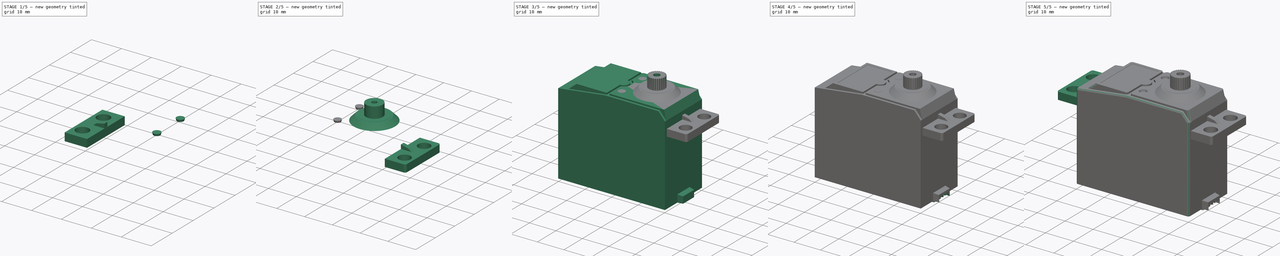
[diagram: build sequence overview — one tinted view per stage of 5, left to right]
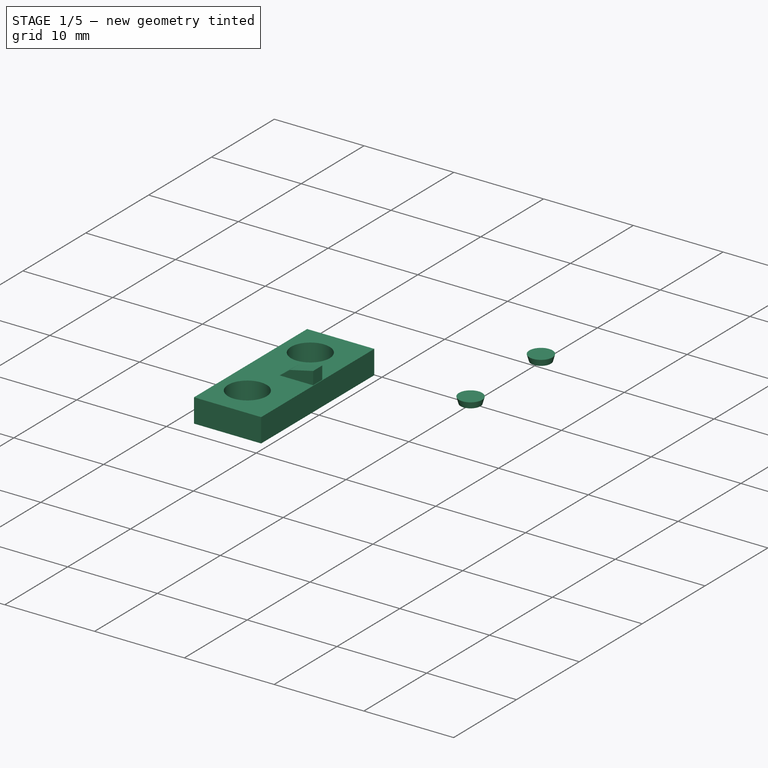
[diagram: stage 1 of 5 — iso view after this stage's code; geometry added in this stage tinted green]
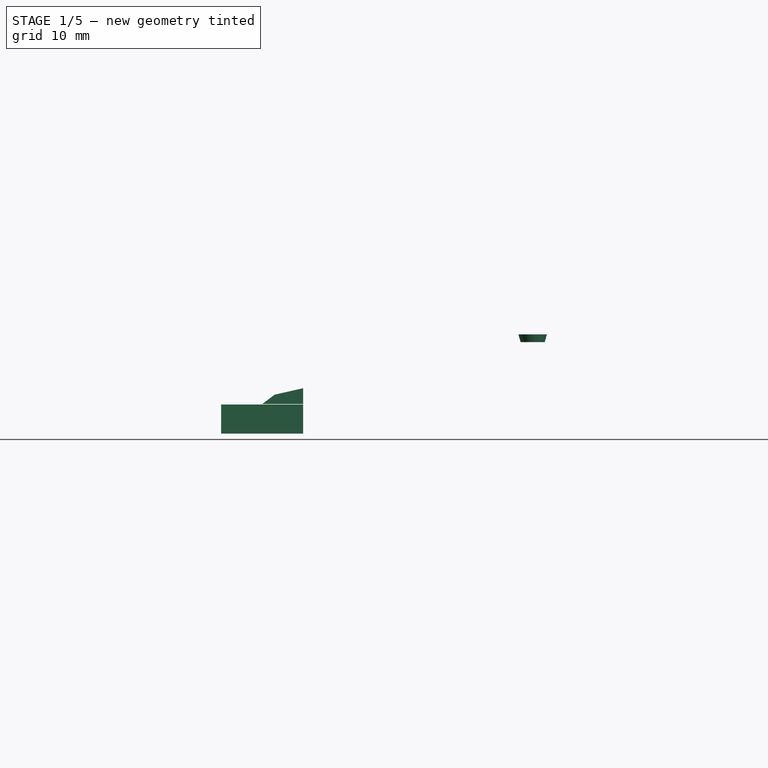
[diagram: stage 1 of 5 — front view after this stage's code; geometry added in this stage tinted green]
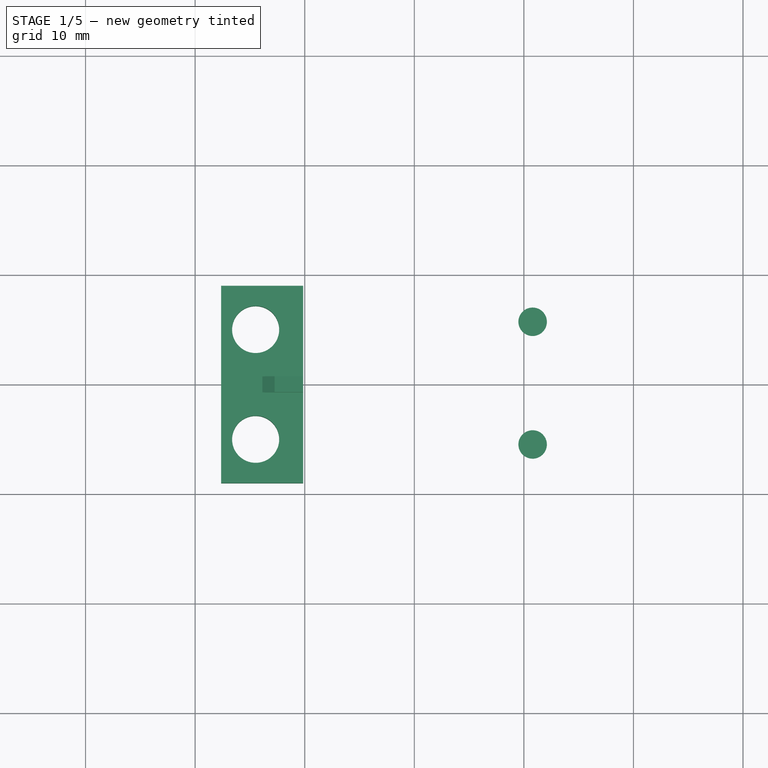
[diagram: stage 1 of 5 — top view after this stage's code; geometry added in this stage tinted green]
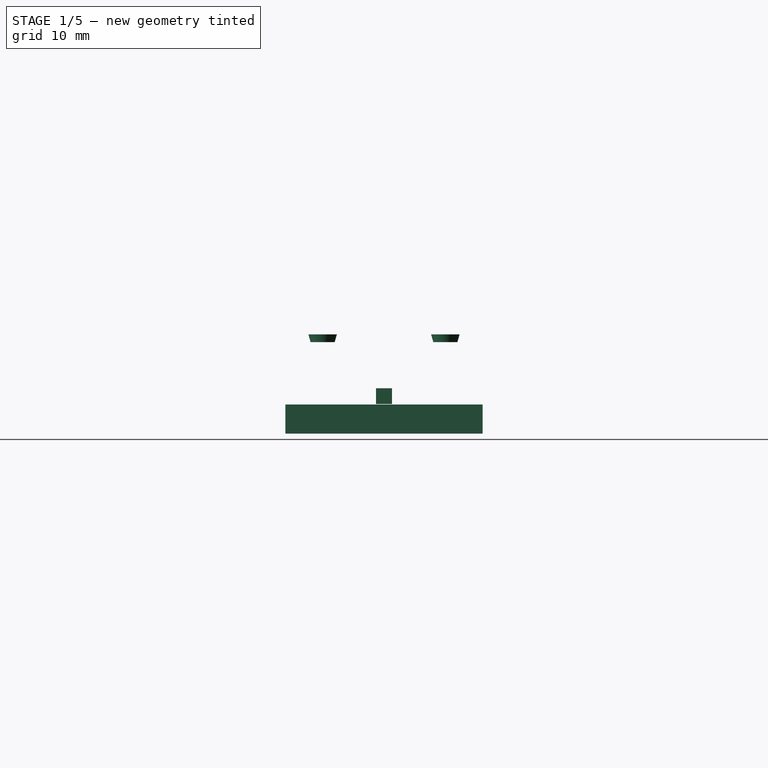
[diagram: stage 1 of 5 — right view after this stage's code; geometry added in this stage tinted green]
FCSTD DOCUMENT  (FreeCAD 0.14R3702 (Git))
Label: Futaba-3003-body
License: CC-BY 3.0
LicenseURL: http://creativecommons.org/licenses/by/3.0/
objects: Sketcher::SketchObject×24, PartDesign::Pocket×12, PartDesign::Pad×6, Part::Fillet×6, Part::MultiFuse×5, Part::Loft×3, Part::Mirroring×2, PartDesign::PolarPattern×1, Part::Cut×1, App::DocumentObjectGroup×1, Part::Feature×1
note: 79 computed .brp shape members not serialized (recipe doc carries the construction recipe); baked Part::Feature solids carry a one-line shape summary decoded from their .brp

FEATURE [Sketcher::SketchObject] Sketch019
  Placement = pos=(-20.15,0,24.7) rot=(0,0,1;0rad)
  sketch-geometry (4):
    g0: LineSegment StartX=-7.48 StartY=9 StartZ=0 EndX=0 EndY=9 EndZ=0
    g1: LineSegment StartX=0 StartY=9 StartZ=0 EndX=0 EndY=-9 EndZ=0
    g2: LineSegment StartX=0 StartY=-9 StartZ=0 EndX=-7.48 EndY=-9 EndZ=0
    g3: LineSegment StartX=-7.48 StartY=-9 StartZ=0 EndX=-7.48 EndY=9 EndZ=0
  constraints (12):
    c: Coincident(g0,g1)
    c: Coincident(g1,g2)
    c: Coincident(g2,g3)
    c: Coincident(g3,g0)
    c: Horizontal(g0)
    c: Horizontal(g2)
    c: Vertical(g1)
    c: Vertical(g3)
    c: Symmetric(g0,g2,g-1)
    c: PointOnObject(g1,g-2)
    c: DistanceX(g0) = 7.48
    c: DistanceY(g3) = 18
FEATURE [PartDesign::Pad] Pad004
  Length = 2.65
  Length2 = 100
  Placement = pos=(-20.15,0,24.7) rot=(0,0,1;0rad)
  Sketch = -> Sketch019
  Type = 0
FEATURE [Sketcher::SketchObject] Sketch020
  ExternalGeometry = -> [Pad004]
  Placement = pos=(-20.15,0,27.35) rot=(0,0,1;0rad)
  Support = -> Pad004 [Face6]
  sketch-geometry (6):
    g0: Circle CenterX=-4.33 CenterY=5.01 CenterZ=0 NormalX=0 NormalY=0 NormalZ=1 Radius=2.15
    g1: LineSegment [constr] StartX=-4.33 StartY=5.01 StartZ=0 EndX=-7.48 EndY=5.01 EndZ=0
    g2: GeomPoint [constr] X=-6.48 Y=5.01 Z=0
    g3: LineSegment [constr] StartX=-4.33 StartY=5.01 StartZ=0 EndX=-4.33 EndY=9 EndZ=0
    g4: GeomPoint [constr] X=-4.33 Y=7.16 Z=0
    g5: Circle CenterX=-4.33 CenterY=-5.01 CenterZ=0 NormalX=0 NormalY=0 NormalZ=1 Radius=2.15
  constraints (15):
    c: Radius(g0) = 2.15
    c: Coincident(g1,g0)
    c: Horizontal(g1)
    c: PointOnObject(g1,g-3)
    c: PointOnObject(g2,g1)
    c: PointOnObject(g2,g0)
    c: DistanceX(g2,g1) = -1
    c: Coincident(g3,g0)
    c: Vertical(g3)
    c: PointOnObject(g3,g-4)
    c: PointOnObject(g4,g3)
    c: PointOnObject(g4,g0)
    c: DistanceY(g4,g3) = 1.84
    c: Equal(g0,g5)
    c: Symmetric(g5,g0,g-1)
FEATURE [PartDesign::Pocket] Pocket011
  Length = 5
  Placement = pos=(-20.15,0,24.7) rot=(0,0,1;0rad)
  Sketch = -> Sketch020
  Type = 1
FEATURE [Sketcher::SketchObject] Sketch021
  Placement = pos=(-20.15,0,27.4) rot=(1,0,0;1.5708rad)
  sketch-geometry (4):
    g0: LineSegment StartX=-3.72 StartY=0 StartZ=0 EndX=-2.6 EndY=0.85 EndZ=0
    g1: LineSegment StartX=-2.6 StartY=0.85 StartZ=0 EndX=0 EndY=1.44 EndZ=0
    g2: LineSegment StartX=0 StartY=0 StartZ=0 EndX=-3.72 EndY=0 EndZ=0
    g3: LineSegment StartX=0 StartY=1.44 StartZ=0 EndX=0 EndY=0 EndZ=0
  constraints (11):
    c: Coincident(g0,g1)
    c: Coincident(g2,g0)
    c: Horizontal(g2)
    c: Coincident(g3,g1)
    c: Coincident(g3,g-1)
    c: Vertical(g3)
    c: DistanceY(g3) = -1.44
    c: DistanceX(g2) = -3.72
    c: Coincident(g2,g-1)
    c: DistanceY(g0,g0) = -0.85
    c: DistanceX(g0,g1) = 2.6
FEATURE [PartDesign::Pad] Pad005
  Length = 1.46
  Length2 = 100
  Midplane = true
  Placement = pos=(-20.15,0,27.4) rot=(1,0,0;1.5708rad)
  Sketch = -> Sketch021
  Type = 0
FEATURE [Part::MultiFuse] Fusion002
  Shapes = -> [Pad005,Pocket011]
FEATURE [Sketcher::SketchObject] Sketch022
  sketch-geometry (1):
    g0: Circle CenterX=0 CenterY=0 CenterZ=0 NormalX=0 NormalY=0 NormalZ=1 Radius=1.1
  constraints (2):
    c: Coincident(g0,g-1)
    c: Radius(g0) = 1.1
FEATURE [Sketcher::SketchObject] Sketch023
  Placement = pos=(0,0,0.7) rot=(0,0,1;0rad)
  sketch-geometry (1):
    g0: Circle CenterX=0 CenterY=0 CenterZ=0 NormalX=0 NormalY=0 NormalZ=1 Radius=1.3
  constraints (2):
    c: Coincident(g0,g-1)
    c: Radius(g0) = 1.3
FEATURE [Part::Loft] Loft002
  Closed = false
  Placement = pos=(0.8,5.6,33.05) rot=(0,0,1;0rad)
  Ruled = false
  Sections = -> [Sketch022,Sketch023]
  Solid = true
FEATURE [Part::Mirroring] Part__Mirroring001  label="Loft002 (Mirror #2)"
  Base = (0,0,0)
  Normal = (0,1,0)
  Source = -> Loft002
FEATURE [Part::MultiFuse] Fusion004
  Shapes = -> [Part__Mirroring001,Loft002]
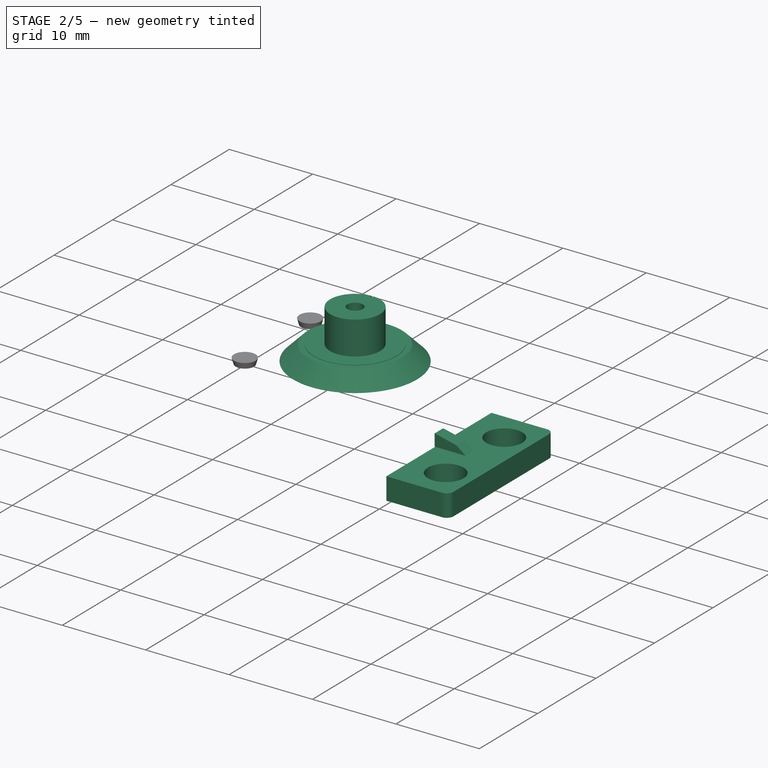
[diagram: stage 2 of 5 — iso view after this stage's code; geometry added in this stage tinted green]
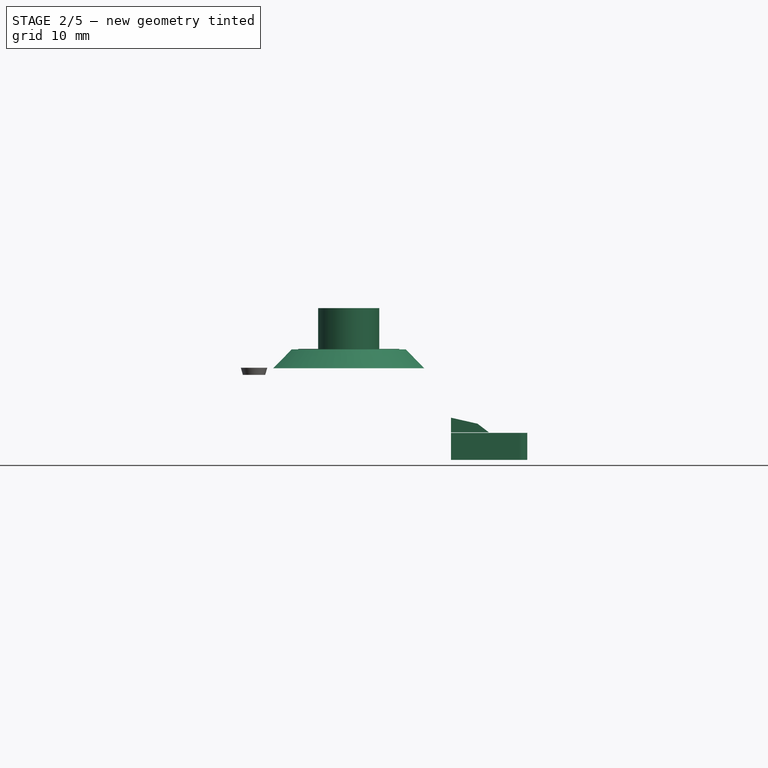
[diagram: stage 2 of 5 — front view after this stage's code; geometry added in this stage tinted green]
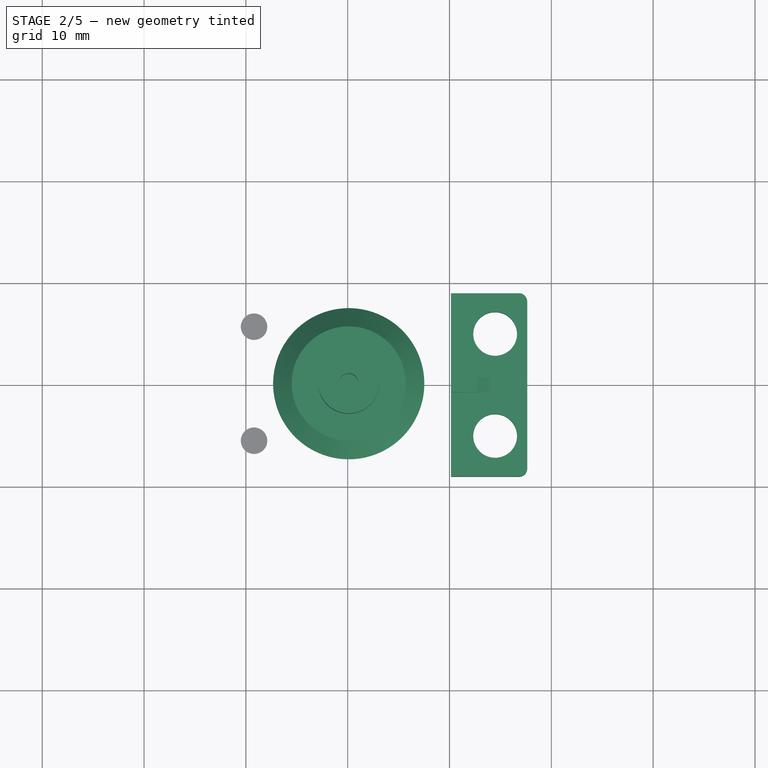
[diagram: stage 2 of 5 — top view after this stage's code; geometry added in this stage tinted green]
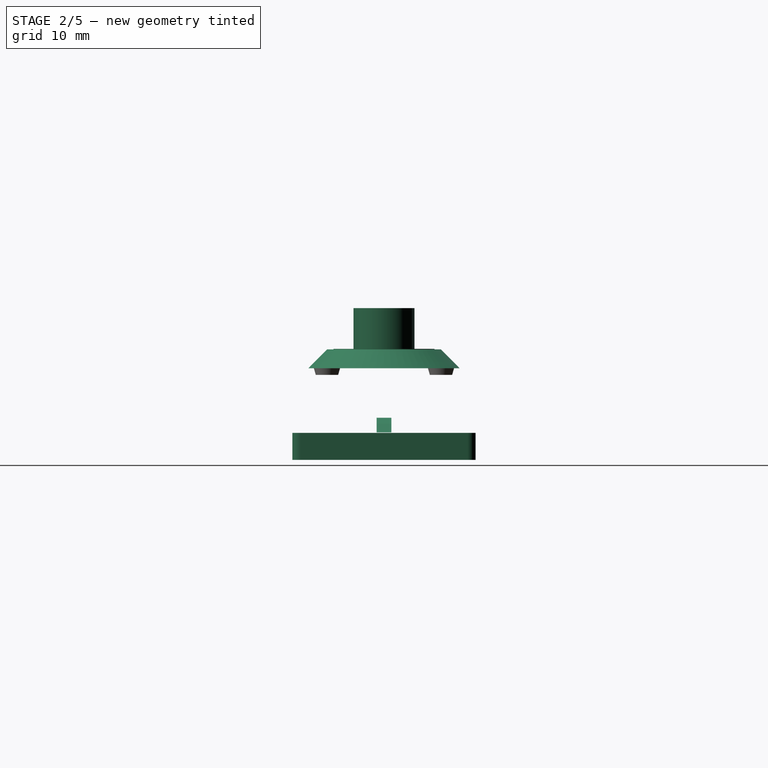
[diagram: stage 2 of 5 — right view after this stage's code; geometry added in this stage tinted green]
FEATURE [Sketcher::SketchObject] Sketch012
  sketch-geometry (1):
    g0: Circle CenterX=0 CenterY=0 CenterZ=0 NormalX=0 NormalY=0 NormalZ=1 Radius=7.425
  constraints (2):
    c: Coincident(g0,g-1)
    c: Radius(g0) = 7.425
FEATURE [Sketcher::SketchObject] Sketch013
  Placement = pos=(0,0,1.85) rot=(0,0,1;0rad)
  sketch-geometry (1):
    g0: Circle CenterX=0 CenterY=0 CenterZ=0 NormalX=0 NormalY=0 NormalZ=1 Radius=5.6
  constraints (2):
    c: Coincident(g0,g-1)
    c: Radius(g0) = 5.6
FEATURE [Part::Loft] Loft001
  Closed = false
  Placement = pos=(10.1,0,33.7) rot=(0,0,1;0rad)
  Ruled = false
  Sections = -> [Sketch012,Sketch013]
  Solid = true
FEATURE [Sketcher::SketchObject] Sketch014
  Placement = pos=(10.1,0,35.55) rot=(0,0,1;0rad)
  Support = -> Loft001 [Face3]
  sketch-geometry (1):
    g0: Circle CenterX=0 CenterY=0 CenterZ=0 NormalX=0 NormalY=0 NormalZ=1 Radius=4.96
  constraints (2):
    c: Coincident(g0,g-1)
    c: Radius(g0) = 4.96
FEATURE [PartDesign::Pad] Pad002
  Length = 0.05
  Length2 = 100
  Placement = pos=(10.1,0,33.7) rot=(0,0,1;0rad)
  Sketch = -> Sketch014
  Type = 0
FEATURE [Sketcher::SketchObject] Sketch015
  Placement = pos=(10.1,0,35.6) rot=(0,0,1;0rad)
  Support = -> Pad002 [Face5]
  sketch-geometry (1):
    g0: Circle CenterX=0 CenterY=0 CenterZ=0 NormalX=0 NormalY=0 NormalZ=1 Radius=3
  constraints (2):
    c: Coincident(g0,g-1)
    c: Radius(g0) = 3
FEATURE [PartDesign::Pad] Pad003
  Length = 4
  Length2 = 100
  Placement = pos=(10.1,0,33.7) rot=(0,0,1;0rad)
  Sketch = -> Sketch015
  Type = 0
FEATURE [Sketcher::SketchObject] Sketch016
  Placement = pos=(10.1,0,39.6) rot=(0,0,1;0rad)
  Support = -> Pad003 [Face7]
  sketch-geometry (1):
    g0: Circle CenterX=0 CenterY=0 CenterZ=0 NormalX=0 NormalY=0 NormalZ=1 Radius=0.935
  constraints (2):
    c: Coincident(g0,g-1)
    c: Radius(g0) = 0.935
FEATURE [PartDesign::Pocket] Pocket008
  Length = 4
  Placement = pos=(10.1,0,33.7) rot=(0,0,1;0rad)
  Sketch = -> Sketch016
  Type = 0
FEATURE [Sketcher::SketchObject] Sketch017
  Placement = pos=(10.1,0,39.6) rot=(0,0,1;0rad)
  Support = -> Pocket008 [Face7]
  sketch-geometry (6):
    g0: LineSegment StartX=-0.135 StartY=3.12447 StartZ=0 EndX=0.135 EndY=3.12447 EndZ=0
    g1: LineSegment [constr] StartX=0.116573 StartY=2.72447 StartZ=0 EndX=0 EndY=0 EndZ=0
    g2: LineSegment [constr] StartX=0 StartY=0 StartZ=0 EndX=-0.117614 EndY=2.72447 EndZ=0
    g3: LineSegment StartX=-0.117614 StartY=2.72447 StartZ=0 EndX=0.116573 EndY=2.72447 EndZ=0
    g4: LineSegment StartX=-0.117614 StartY=2.72447 StartZ=0 EndX=-0.135 EndY=3.12447 EndZ=0
    g5: LineSegment StartX=0.116573 StartY=2.72447 StartZ=0 EndX=0.135 EndY=3.12447 EndZ=0
  constraints (15):
    c: Horizontal(g0)
    c: DistanceX(g0) = 0.27
    c: Symmetric(g0,g0,g-2)
    c: Coincident(g2,g-1)
    c: Coincident(g1,g-1)
    c: Horizontal(g3)
    c: Coincident(g2,g3)
    c: Coincident(g1,g3)
    c: DistanceY(g0,g1) = -0.4
    c: Coincident(g4,g2)
    c: Coincident(g4,g0)
    c: Coincident(g5,g1)
    c: Coincident(g5,g0)
    c: DistanceX(g2) = -0.117614
    c: DistanceY(g2) = 2.72447
FEATURE [PartDesign::Pocket] Pocket009
  Length = 4
  Placement = pos=(10.1,0,33.7) rot=(0,0,1;0rad)
  Sketch = -> Sketch017
  Type = 0
FEATURE [Part::Fillet] Fillet  label="left-ear"
  Base = -> Fusion002
  Edges = 2 edges r=0.8: [Edge13,Edge17]
FEATURE [Part::Mirroring] Part__Mirroring  label="left-ear (Mirror #1)"
  Base = (0,0,0)
  Normal = (1,0,0)
  Source = -> Fillet
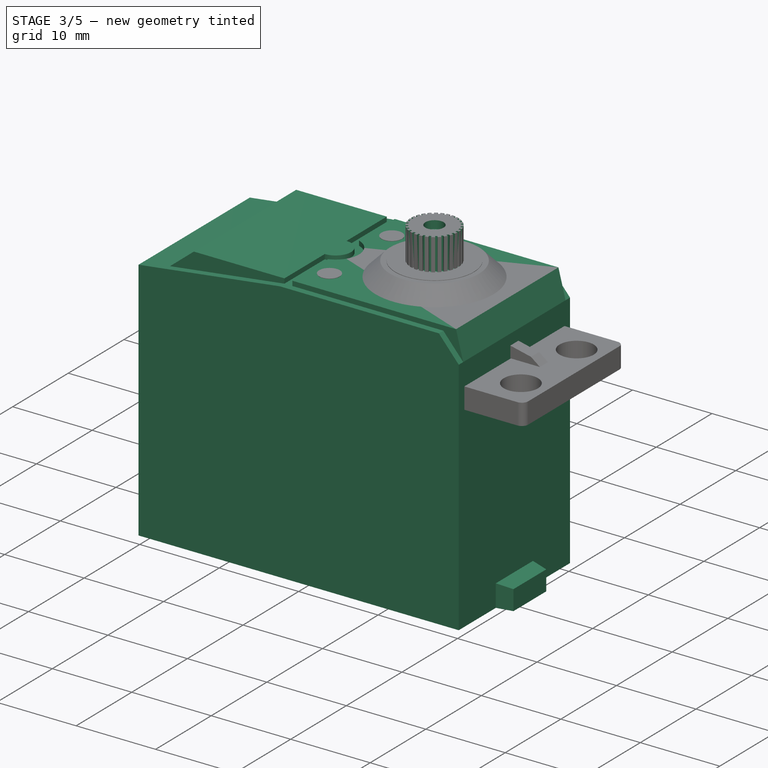
[diagram: stage 3 of 5 — iso view after this stage's code; geometry added in this stage tinted green]
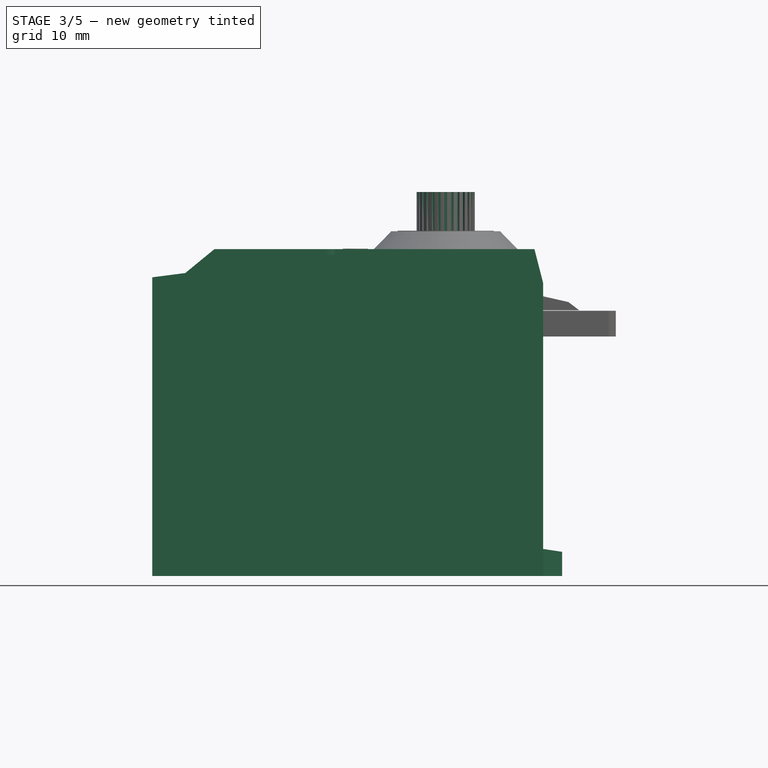
[diagram: stage 3 of 5 — front view after this stage's code; geometry added in this stage tinted green]
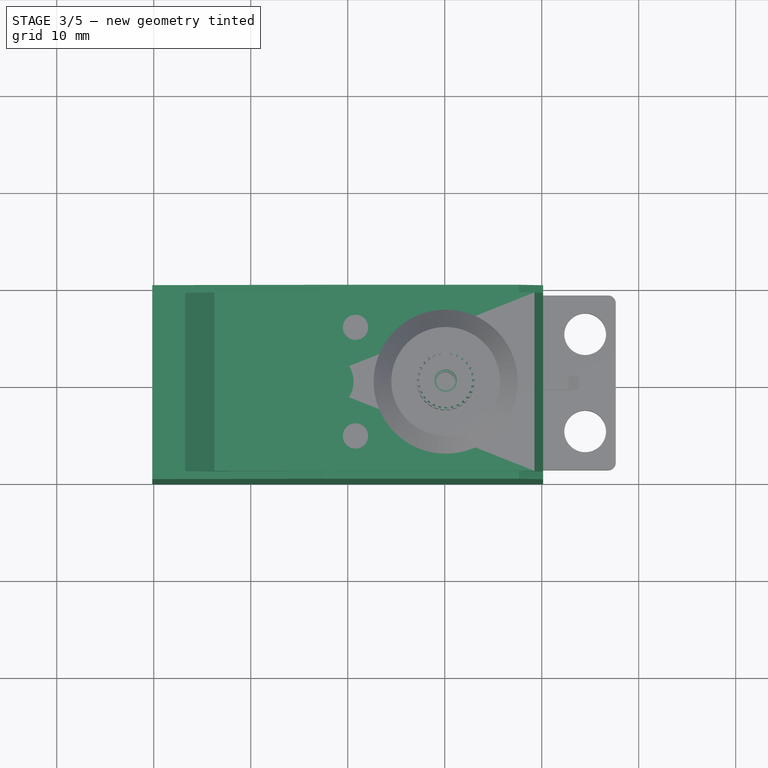
[diagram: stage 3 of 5 — top view after this stage's code; geometry added in this stage tinted green]
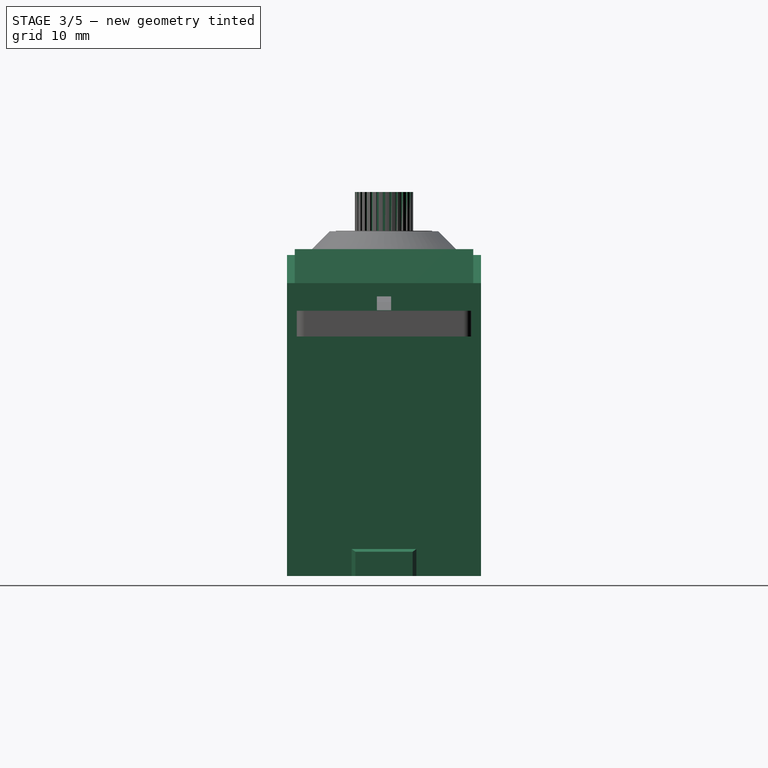
[diagram: stage 3 of 5 — right view after this stage's code; geometry added in this stage tinted green]
FEATURE [Sketcher::SketchObject] Sketch
  Placement = pos=(0,0,0) rot=(1,0,0;1.5708rad)
  sketch-geometry (4):
    g0: LineSegment StartX=-20.15 StartY=0 StartZ=0 EndX=20.15 EndY=0 EndZ=0
    g1: LineSegment StartX=20.15 StartY=0 StartZ=0 EndX=20.15 EndY=33.7 EndZ=0
    g2: LineSegment StartX=-20.15 StartY=33.7 StartZ=0 EndX=-20.15 EndY=0 EndZ=0
    g3: LineSegment StartX=20.15 StartY=33.7 StartZ=0 EndX=-20.15 EndY=33.7 EndZ=0
  constraints (12):
    c: PointOnObject(g0,g-1)
    c: PointOnObject(g0,g-1)
    c: Coincident(g0,g1)
    c: Vertical(g1)
    c: Coincident(g2,g0)
    c: DistanceX(g0) = 40.3
    c: DistanceY(g1,g0) = -33.7
    c: Vertical(g2)
    c: Symmetric(g0,g0,g-2)
    c: Coincident(g3,g1)
    c: Horizontal(g3)
    c: Coincident(g2,g3)
FEATURE [PartDesign::Pad] Pad
  Length = 20
  Length2 = 100
  Midplane = true
  Placement = pos=(0,0,0) rot=(1,0,0;1.5708rad)
  Sketch = -> Sketch
  Type = 0
FEATURE [Sketcher::SketchObject] Sketch001
  ExternalGeometry = -> [Pad]
  Placement = pos=(0,-10,0) rot=(1,0,0;1.5708rad)
  Support = -> Pad [Face6]
  sketch-geometry (6):
    g0: LineSegment StartX=20.15 StartY=30.2 StartZ=0 EndX=17.65 EndY=33.1 EndZ=0
    g1: LineSegment StartX=17.65 StartY=33.1 StartZ=0 EndX=-2.35 EndY=33.1 EndZ=0
    g2: LineSegment StartX=-2.35 StartY=33.1 StartZ=0 EndX=-20.15 EndY=30.8 EndZ=0
    g3: LineSegment StartX=-20.15 StartY=30.8 StartZ=0 EndX=-20.15 EndY=33.7 EndZ=0
    g4: LineSegment StartX=20.15 StartY=30.2 StartZ=0 EndX=20.15 EndY=33.7 EndZ=0
    g5: LineSegment StartX=-20.15 StartY=33.7 StartZ=0 EndX=20.15 EndY=33.7 EndZ=0
  constraints (17):
    c: PointOnObject(g0,g-3)
    c: Coincident(g0,g1)
    c: Horizontal(g1)
    c: Coincident(g1,g2)
    c: PointOnObject(g2,g-4)
    c: Coincident(g3,g2)
    c: Coincident(g4,g0)
    c: Coincident(g3,g-4)
    c: Coincident(g4,g-3)
    c: Horizontal(g5)
    c: Coincident(g5,g4)
    c: Coincident(g5,g3)
    c: DistanceX(g0,g4) = 2.5
    c: DistanceY(g0,g4) = 0.6
    c: DistanceX(g1) = -20
    c: DistanceY(g-3,g0) = 30.2
    c: DistanceY(g2,g-4) = -30.8
FEATURE [PartDesign::Pocket] Pocket
  Length = 0.8
  Placement = pos=(0,0,0) rot=(1,0,0;1.5708rad)
  Sketch = -> Sketch001
  Type = 0
FEATURE [Sketcher::SketchObject] Sketch002
  ExternalGeometry = -> [Pocket]
  Placement = pos=(0,10,0) rot=(-1,0,0;1.5708rad)
  Support = -> Pocket [Face4]
  sketch-geometry (6):
    g0: LineSegment StartX=-20.15 StartY=-30.8 StartZ=0 EndX=-2.35 EndY=-33.1 EndZ=0
    g1: LineSegment StartX=17.65 StartY=-33.1 StartZ=0 EndX=20.15 EndY=-30.2 EndZ=0
    g2: LineSegment StartX=20.15 StartY=-33.7 StartZ=0 EndX=-20.15 EndY=-33.7 EndZ=0
    g3: LineSegment StartX=-2.35 StartY=-33.1 StartZ=0 EndX=17.65 EndY=-33.1 EndZ=0
    g4: LineSegment StartX=20.15 StartY=-30.2 StartZ=0 EndX=20.15 EndY=-33.7 EndZ=0
    g5: LineSegment StartX=-20.15 StartY=-33.7 StartZ=0 EndX=-20.15 EndY=-30.8 EndZ=0
  constraints (12):
    c: Coincident(g-3,g0)
    c: Coincident(g1,g-4)
    c: Coincident(g2,g-5)
    c: Coincident(g2,g-5)
    c: Coincident(g0,g-3)
    c: Coincident(g1,g-4)
    c: Coincident(g3,g0)
    c: Coincident(g3,g1)
    c: Coincident(g4,g1)
    c: Coincident(g4,g2)
    c: Coincident(g5,g2)
    c: Coincident(g5,g0)
FEATURE [PartDesign::Pocket] Pocket001
  Length = 0.8
  Placement = pos=(0,0,0) rot=(1,0,0;1.5708rad)
  Sketch = -> Sketch002
  Type = 0
FEATURE [Sketcher::SketchObject] Sketch003
  ExternalGeometry = -> [Pocket001]
  Placement = pos=(0,-9.2,0) rot=(1,0,0;1.5708rad)
  Support = -> Pocket001 [Face7]
  sketch-geometry (7):
    g0: LineSegment StartX=20.15 StartY=30.2 StartZ=0 EndX=19.25 EndY=33.7 EndZ=0
    g1: LineSegment StartX=19.25 StartY=33.7 StartZ=0 EndX=20.15 EndY=33.7 EndZ=0
    g2: LineSegment StartX=20.15 StartY=33.7 StartZ=0 EndX=20.15 EndY=30.2 EndZ=0
    g3: LineSegment StartX=-20.15 StartY=30.8 StartZ=0 EndX=-16.75 EndY=31.2393 EndZ=0
    g4: LineSegment StartX=-16.75 StartY=31.2393 StartZ=0 EndX=-13.75 EndY=33.7 EndZ=0
    g5: LineSegment StartX=-13.75 StartY=33.7 StartZ=0 EndX=-20.15 EndY=33.7 EndZ=0
    g6: LineSegment StartX=-20.15 StartY=33.7 StartZ=0 EndX=-20.15 EndY=30.8 EndZ=0
  constraints (17):
    c: Coincident(g-3,g0)
    c: PointOnObject(g0,g-4)
    c: Coincident(g0,g1)
    c: Coincident(g1,g2)
    c: Coincident(g2,g0)
    c: Coincident(g1,g-4)
    c: DistanceX(g0,g1) = 0.9
    c: Coincident(g-6,g3)
    c: Coincident(g3,g4)
    c: PointOnObject(g4,g-4)
    c: Coincident(g4,g5)
    c: Coincident(g5,g6)
    c: Coincident(g6,g3)
    c: Coincident(g5,g-5)
    c: PointOnObject(g3,g-6)
    c: DistanceX(g0,g4) = -33
    c: DistanceX(g4,g3) = -3
FEATURE [PartDesign::Pocket] Pocket002
  Length = 5
  Placement = pos=(0,0,0) rot=(1,0,0;1.5708rad)
  Sketch = -> Sketch003
  Type = 1
FEATURE [Sketcher::SketchObject] Sketch004
  ExternalGeometry = -> [Pocket002]
  Placement = pos=(0,0,33.7) rot=(0,0,1;3.14159rad)
  Support = -> Pocket002 [Face14]
  sketch-geometry (11):
    g0: LineSegment StartX=2.35 StartY=-9.2 StartZ=0 EndX=2.35 EndY=-1.95 EndZ=0
    g1: ArcOfCircle CenterX=2.35 CenterY=0 CenterZ=0 NormalX=0 NormalY=0 NormalZ=1 Radius=1.95 StartAngle=1.5708 EndAngle=4.71239
    g2: LineSegment [constr] StartX=2.35 StartY=-1.95 StartZ=0 EndX=2.35 EndY=0 EndZ=0
    g3: LineSegment StartX=2.35 StartY=1.95 StartZ=0 EndX=2.35 EndY=9.2 EndZ=0
    g4: ArcOfCircle CenterX=2.35 CenterY=0 CenterZ=0 NormalX=0 NormalY=0 NormalZ=1 Radius=2.95 StartAngle=1.91663 EndAngle=4.36655
    g5: GeomPoint [constr] X=0.4 Y=0 Z=0
    g6: GeomPoint [constr] X=-0.6 Y=0 Z=0
    g7: LineSegment StartX=1.35 StartY=-2.77534 StartZ=0 EndX=1.35 EndY=-9.2 EndZ=0
    g8: LineSegment StartX=1.35 StartY=2.77534 StartZ=0 EndX=1.35 EndY=9.2 EndZ=0
    g9: LineSegment StartX=2.35 StartY=-9.2 StartZ=0 EndX=1.35 EndY=-9.2 EndZ=0
    g10: LineSegment StartX=2.35 StartY=9.2 StartZ=0 EndX=1.35 EndY=9.2 EndZ=0
  constraints (31):
    c: Vertical(g0)
    c: Coincident(g1,g0)
    c: Coincident(g2,g0)
    c: Coincident(g2,g1)
    c: Vertical(g2)
    c: Radius(g1) = 1.95
    c: Coincident(g3,g1)
    c: Vertical(g3)
    c: PointOnObject(g3,g-4)
    c: Symmetric(g0,g1,g-1)
    c: Coincident(g-5,g0)
    c: Coincident(g4,g1)
    c: Symmetric(g4,g4,g-1)
    c: DistanceX(g4,g0) = 1
    c: PointOnObject(g5,g-1)
    c: PointOnObject(g5,g1)
    c: PointOnObject(g6,g-1)
    c: PointOnObject(g6,g4)
    c: DistanceX(g5,g6) = -1
    c: PointOnObject(g7,g-3)
    c: Vertical(g7)
    c: Coincident(g7,g4)
    c: Coincident(g8,g4)
    c: PointOnObject(g8,g-4)
    c: Vertical(g8)
    c: Horizontal(g9)
    c: Coincident(g9,g0)
    c: Coincident(g9,g7)
    c: Horizontal(g10)
    c: Coincident(g10,g3)
    c: Coincident(g10,g8)
FEATURE [PartDesign::Pocket] Pocket003
  Length = 0.6
  Placement = pos=(0,0,0) rot=(1,0,0;1.5708rad)
  Sketch = -> Sketch004
  Type = 0
FEATURE [Sketcher::SketchObject] Sketch006
  Placement = pos=(0,0,0) rot=(0.57735,0.57735,0.57735;2.0944rad)
  sketch-geometry (4):
    g0: LineSegment StartX=-3.35 StartY=2.8 StartZ=0 EndX=3.35 EndY=2.8 EndZ=0
    g1: LineSegment StartX=3.35 StartY=2.8 StartZ=0 EndX=3.35 EndY=0 EndZ=0
    g2: LineSegment StartX=3.35 StartY=0 StartZ=0 EndX=-3.35 EndY=0 EndZ=0
    g3: LineSegment StartX=-3.35 StartY=0 StartZ=0 EndX=-3.35 EndY=2.8 EndZ=0
  constraints (12):
    c: Coincident(g0,g1)
    c: Coincident(g1,g2)
    c: Coincident(g2,g3)
    c: Coincident(g3,g0)
    c: Horizontal(g0)
    c: Horizontal(g2)
    c: Vertical(g1)
    c: Vertical(g3)
    c: PointOnObject(g2,g-1)
    c: Symmetric(g2,g1,g-2)
    c: DistanceX(g0) = 6.7
    c: DistanceY(g1) = -2.8
FEATURE [Sketcher::SketchObject] Sketch007
  Placement = pos=(2,0,0) rot=(0.57735,0.57735,0.57735;2.0944rad)
  sketch-geometry (4):
    g0: LineSegment StartX=-2.95 StartY=2.5 StartZ=0 EndX=2.95 EndY=2.5 EndZ=0
    g1: LineSegment StartX=2.95 StartY=2.5 StartZ=0 EndX=2.95 EndY=0 EndZ=0
    g2: LineSegment StartX=2.95 StartY=0 StartZ=0 EndX=-2.95 EndY=0 EndZ=0
    g3: LineSegment StartX=-2.95 StartY=0 StartZ=0 EndX=-2.95 EndY=2.5 EndZ=0
  constraints (12):
    c: Coincident(g0,g1)
    c: Coincident(g1,g2)
    c: Coincident(g2,g3)
    c: Coincident(g3,g0)
    c: Horizontal(g0)
    c: Horizontal(g2)
    c: Vertical(g1)
    c: Vertical(g3)
    c: PointOnObject(g2,g-1)
    c: Symmetric(g2,g1,g-2)
    c: DistanceX(g0) = 5.9
    c: DistanceY(g1) = -2.5
FEATURE [Part::Loft] Loft  label="wire-holder"
  Closed = false
  Placement = pos=(20.1,0,0) rot=(0,0,1;0rad)
  Ruled = false
  Sections = -> [Sketch006,Sketch007]
  Solid = true
FEATURE [PartDesign::PolarPattern] PolarPattern
  Angle = 360
  Axis = -> Sketch017 [N_Axis]
  Occurrences = 28
  Originals = -> [Pocket009]
  Placement = pos=(10.1,0,33.7) rot=(0,0,1;0rad)
FEATURE [Sketcher::SketchObject] Sketch018
  Placement = pos=(10.1,0,39.6) rot=(0,0,1;0rad)
  Support = -> PolarPattern [Face7]
  sketch-geometry (1):
    g0: Circle CenterX=0 CenterY=0 CenterZ=0 NormalX=0 NormalY=0 NormalZ=1 Radius=1.15
  constraints (2):
    c: Coincident(g0,g-1)
    c: Radius(g0) = 1.15
FEATURE [PartDesign::Pocket] Pocket010  label="shaft-base"
  Length = 1
  Placement = pos=(10.1,0,33.7) rot=(0,0,1;0rad)
  Sketch = -> Sketch018
  Type = 0
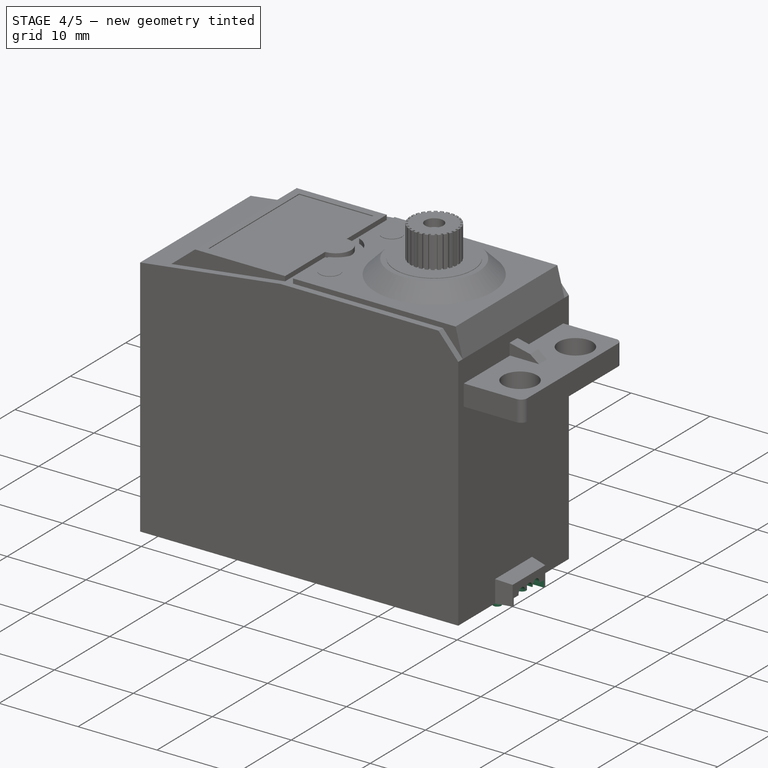
[diagram: stage 4 of 5 — iso view after this stage's code; geometry added in this stage tinted green]
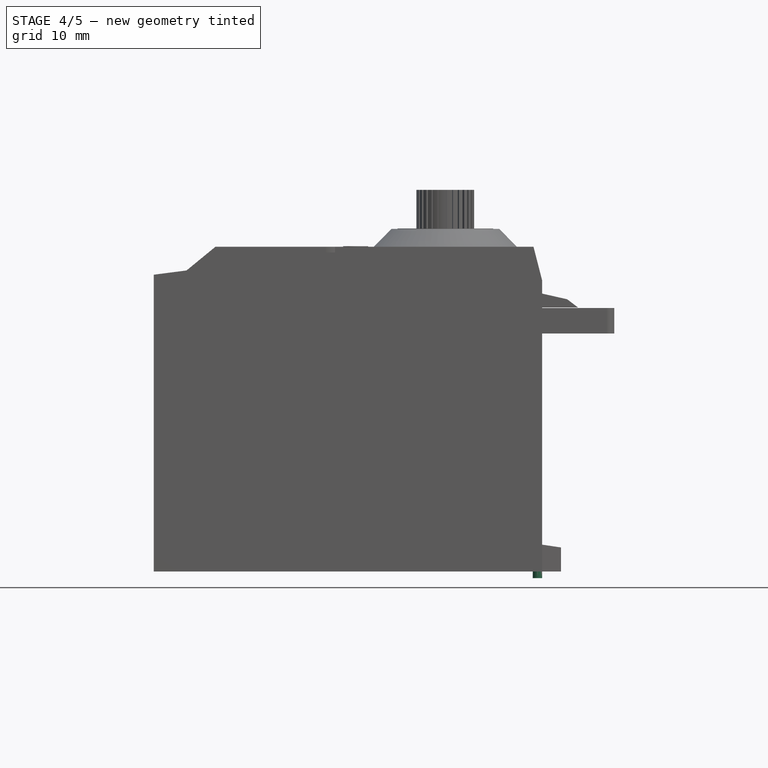
[diagram: stage 4 of 5 — front view after this stage's code; geometry added in this stage tinted green]
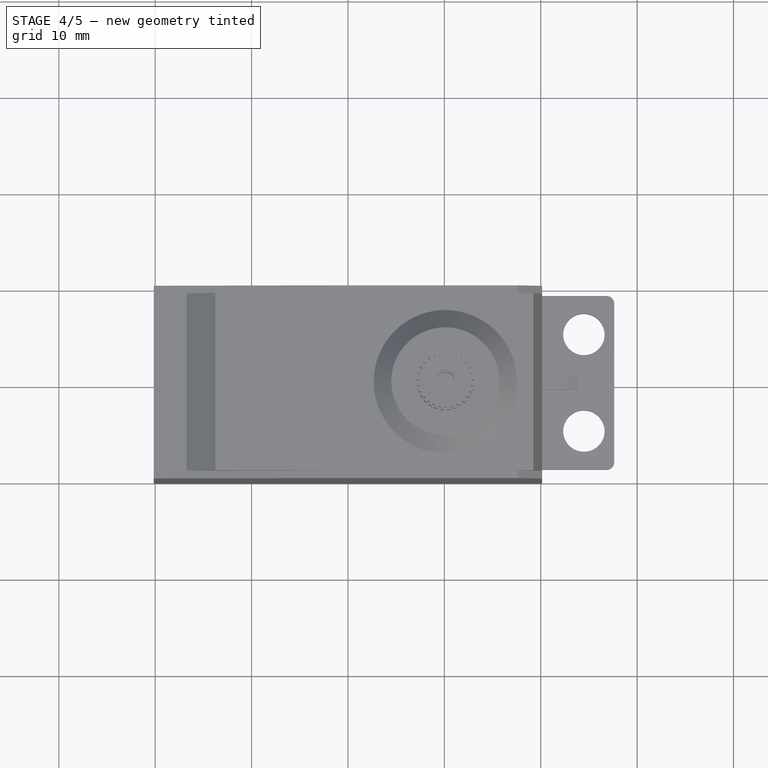
[diagram: stage 4 of 5 — top view after this stage's code; geometry added in this stage tinted green]
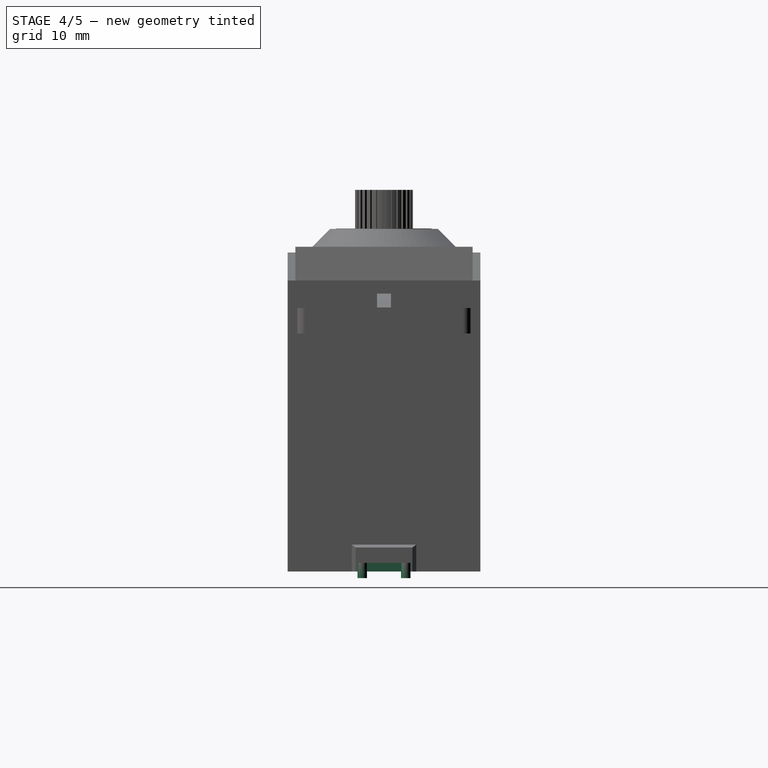
[diagram: stage 4 of 5 — right view after this stage's code; geometry added in this stage tinted green]
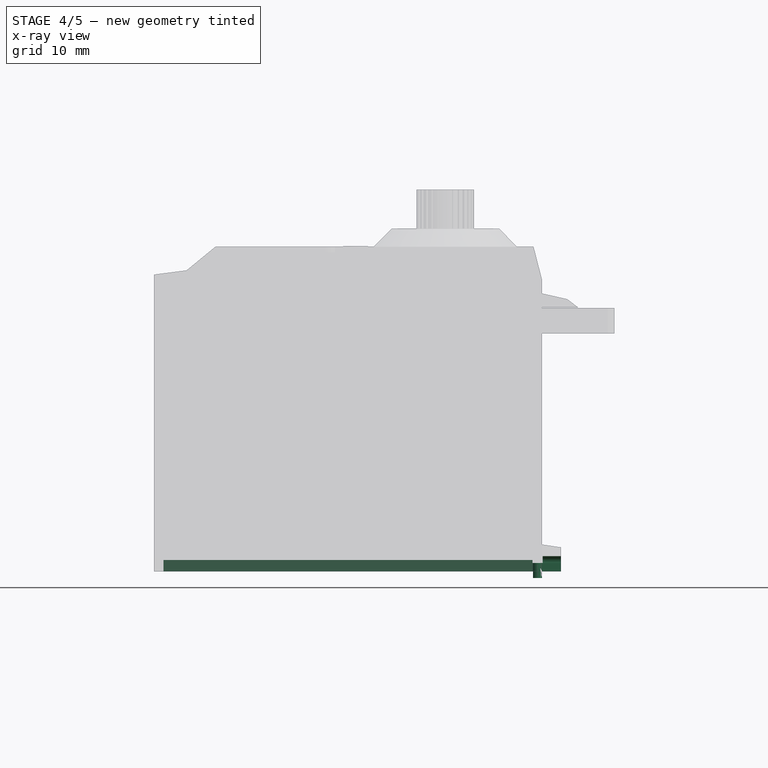
[diagram: stage 4 of 5 — x-ray composite at the front view; earlier geometry ghosted, this stage's added geometry solid]
FEATURE [Sketcher::SketchObject] Sketch005
  ExternalGeometry = -> [Pocket003]
  Placement = pos=(0,0,33.7) rot=(0,0,1;3.14159rad)
  Support = -> Pocket003 [Face16]
  sketch-geometry (6):
    g0: LineSegment StartX=12.75 StartY=-8.2 StartZ=0 EndX=3.35 EndY=-8.2 EndZ=0
    g1: LineSegment StartX=3.35 StartY=-8.2 StartZ=0 EndX=3.35 EndY=8.2 EndZ=0
    g2: LineSegment StartX=3.35 StartY=8.2 StartZ=0 EndX=12.75 EndY=8.2 EndZ=0
    g3: LineSegment StartX=12.75 StartY=8.2 StartZ=0 EndX=12.75 EndY=-8.2 EndZ=0
    g4: LineSegment [constr] StartX=13.75 StartY=-9.2 StartZ=0 EndX=12.75 EndY=-8.2 EndZ=0
    g5: LineSegment [constr] StartX=2.35 StartY=9.2 StartZ=0 EndX=3.35 EndY=8.2 EndZ=0
  constraints (16):
    c: Coincident(g0,g1)
    c: Coincident(g1,g2)
    c: Coincident(g2,g3)
    c: Coincident(g3,g0)
    c: Horizontal(g0)
    c: Horizontal(g2)
    c: Vertical(g1)
    c: Vertical(g3)
    c: Symmetric(g0,g2,g-1)
    c: Coincident(g4,g-3)
    c: Coincident(g4,g0)
    c: Angle(g4,g-3) = 0.785398
    c: Coincident(g5,g-4)
    c: Coincident(g5,g1)
    c: Angle(g5,g-4) = 0.785398
    c: DistanceX(g4,g0) = -1
FEATURE [PartDesign::Pocket] Pocket004
  Length = 0.1
  Placement = pos=(0,0,0) rot=(1,0,0;1.5708rad)
  Sketch = -> Sketch005
  Type = 0
FEATURE [Part::MultiFuse] Fusion
  Shapes = -> [Pocket004,Loft]
FEATURE [Sketcher::SketchObject] Sketch009
  ExternalGeometry = -> [Fusion]
  Placement = pos=(0,0,0) rot=(1,0,0;3.14159rad)
  Support = -> Fusion [Face2]
  sketch-geometry (5):
    g0: LineSegment StartX=-19.15 StartY=9 StartZ=0 EndX=19.15 EndY=9 EndZ=0
    g1: LineSegment StartX=19.15 StartY=9 StartZ=0 EndX=19.15 EndY=-9 EndZ=0
    g2: LineSegment StartX=19.15 StartY=-9 StartZ=0 EndX=-19.15 EndY=-9 EndZ=0
    g3: LineSegment StartX=-19.15 StartY=-9 StartZ=0 EndX=-19.15 EndY=9 EndZ=0
    g4: LineSegment [constr] StartX=-20.15 StartY=10 StartZ=0 EndX=-19.15 EndY=9 EndZ=0
  constraints (13):
    c: Coincident(g0,g1)
    c: Coincident(g1,g2)
    c: Coincident(g2,g3)
    c: Coincident(g3,g0)
    c: Horizontal(g0)
    c: Horizontal(g2)
    c: Vertical(g1)
    c: Vertical(g3)
    c: Symmetric(g1,g0,g-1)
    c: Coincident(g4,g-3)
    c: Coincident(g4,g0)
    c: Angle(g4,g-3) = 0.785398
    c: DistanceX(g4,g0) = 1
FEATURE [PartDesign::Pocket] Pocket005
  Length = 1.2
  Sketch = -> Sketch009
  Type = 0
FEATURE [Sketcher::SketchObject] Sketch010
  ExternalGeometry = -> [Pocket005]
  Placement = pos=(22.1,0,0) rot=(0.57735,0.57735,0.57735;2.0944rad)
  Support = -> Pocket005 [Face33]
  sketch-geometry (4):
    g0: LineSegment StartX=2.75 StartY=0.9 StartZ=0 EndX=2.75 EndY=0 EndZ=0
    g1: LineSegment StartX=-2.75 StartY=0 StartZ=0 EndX=-2.75 EndY=0.9 EndZ=0
    g2: LineSegment StartX=-2.75 StartY=0.9 StartZ=0 EndX=2.75 EndY=0.9 EndZ=0
    g3: LineSegment StartX=-2.75 StartY=0 StartZ=0 EndX=2.75 EndY=0 EndZ=0
  constraints (12):
    c: Vertical(g0)
    c: Vertical(g1)
    c: Symmetric(g1,g0,g-2)
    c: Horizontal(g2)
    c: Coincident(g2,g1)
    c: Coincident(g2,g0)
    c: Horizontal(g3)
    c: Coincident(g3,g1)
    c: Coincident(g3,g0)
    c: PointOnObject(g1,g-1)
    c: DistanceY(g1,g-3) = 1.6
    c: DistanceX(g-3,g1) = 0.2
FEATURE [PartDesign::Pocket] Pocket006
  Length = 5
  Sketch = -> Sketch010
  Type = 0
FEATURE [Sketcher::SketchObject] Sketch008
  Placement = pos=(22.1,0,0) rot=(0.57735,0.57735,0.57735;2.0944rad)
  Support = -> Pocket006 [Face34]
  sketch-geometry (5):
    g0: Circle CenterX=1.28508 CenterY=0.99901 CenterZ=0 NormalX=0 NormalY=0 NormalZ=1 Radius=0.6
    g1: LineSegment [constr] StartX=1.28508 StartY=0.99901 StartZ=0 EndX=0.685076 EndY=0.99901 EndZ=0
    g2: Circle CenterX=0 CenterY=0.99901 CenterZ=0 NormalX=0 NormalY=0 NormalZ=1 Radius=0.6
    g3: Circle CenterX=-1.28508 CenterY=0.99901 CenterZ=0 NormalX=0 NormalY=0 NormalZ=1 Radius=0.6
    g4: LineSegment [constr] StartX=0 StartY=0.99901 StartZ=0 EndX=0.685076 EndY=0.99901 EndZ=0
  constraints (11):
    c: Coincident(g1,g0)
    c: Radius(g0) = 0.6
    c: PointOnObject(g1,g0)
    c: Horizontal(g1)
    c: PointOnObject(g2,g-2)
    c: Equal(g3,g2)
    c: Equal(g2,g0)
    c: Symmetric(g0,g3,g-2)
    c: Horizontal(g4)
    c: Coincident(g4,g1)
    c: Coincident(g4,g2)
FEATURE [PartDesign::Pocket] Pocket007
  Length = 1.9
  Sketch = -> Sketch008
  Type = 0
FEATURE [Sketcher::SketchObject] Sketch011
  Placement = pos=(0,0,1.2) rot=(1,0,0;3.14159rad)
  Support = -> Pocket007 [Face36]
  sketch-geometry (3):
    g0: Circle CenterX=19.66 CenterY=-2.26 CenterZ=0 NormalX=0 NormalY=0 NormalZ=1 Radius=0.49
    g1: LineSegment [constr] StartX=19.66 StartY=-2.26 StartZ=0 EndX=20.15 EndY=-2.26 EndZ=0
    g2: Circle CenterX=19.66 CenterY=2.26 CenterZ=0 NormalX=0 NormalY=0 NormalZ=1 Radius=0.49
  constraints (6):
    c: Radius(g0) = 0.49
    c: Horizontal(g1)
    c: Coincident(g1,g0)
    c: PointOnObject(g1,g0)
    c: Equal(g2,g0)
    c: Symmetric(g2,g0,g-1)
FEATURE [PartDesign::Pad] Pad001
  Length = 1.88
  Length2 = 100
  Sketch = -> Sketch011
  Type = 0
FEATURE [Part::MultiFuse] Fusion001
  Shapes = -> [Pad001,Pocket010]
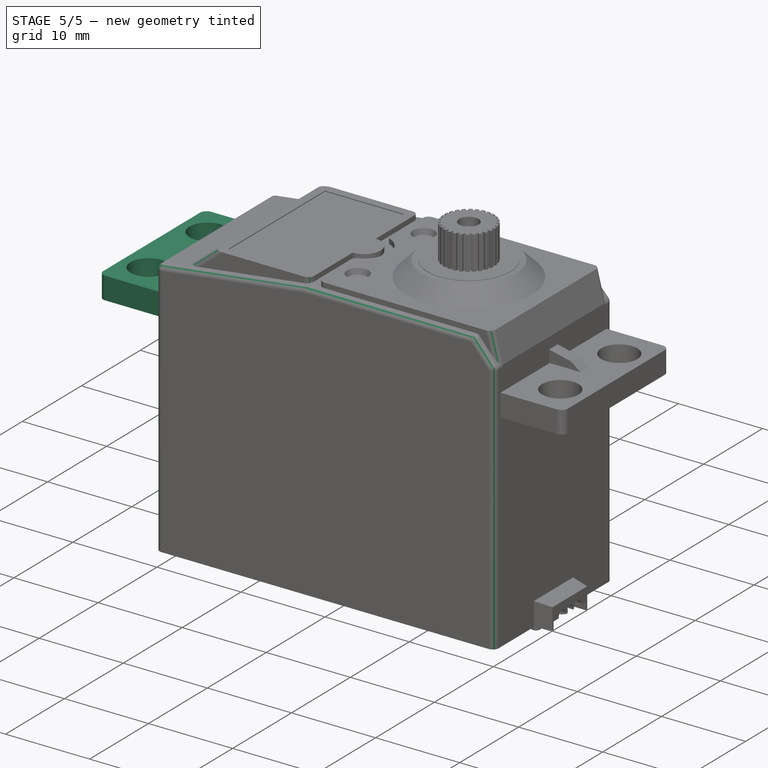
[diagram: stage 5 of 5 — iso view after this stage's code; geometry added in this stage tinted green]
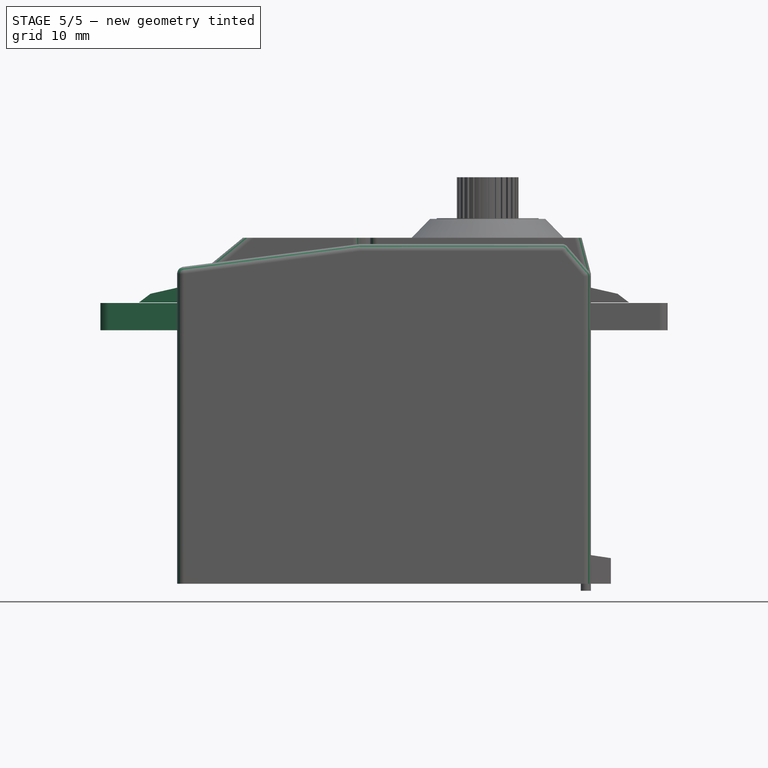
[diagram: stage 5 of 5 — front view after this stage's code; geometry added in this stage tinted green]
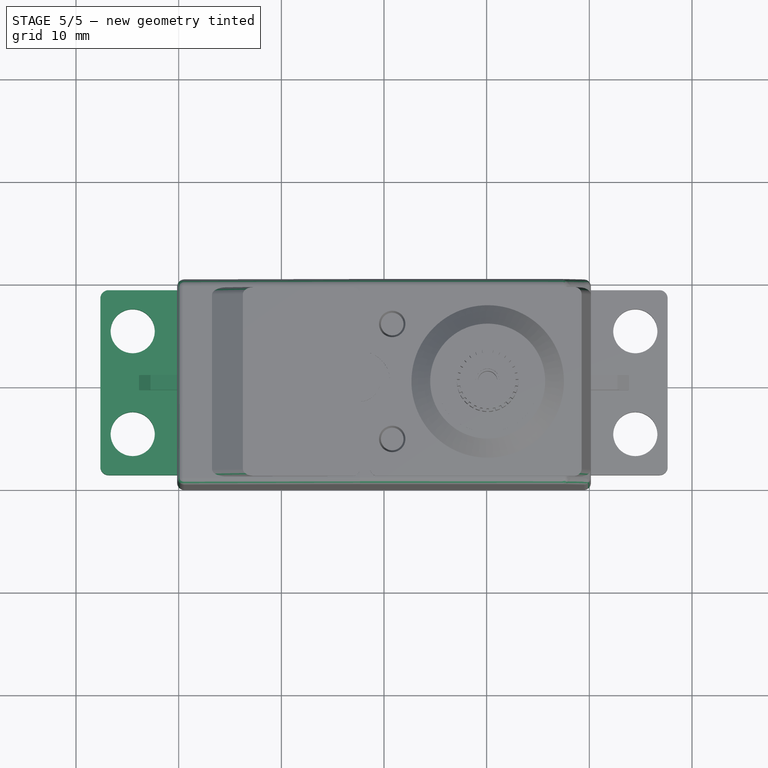
[diagram: stage 5 of 5 — top view after this stage's code; geometry added in this stage tinted green]
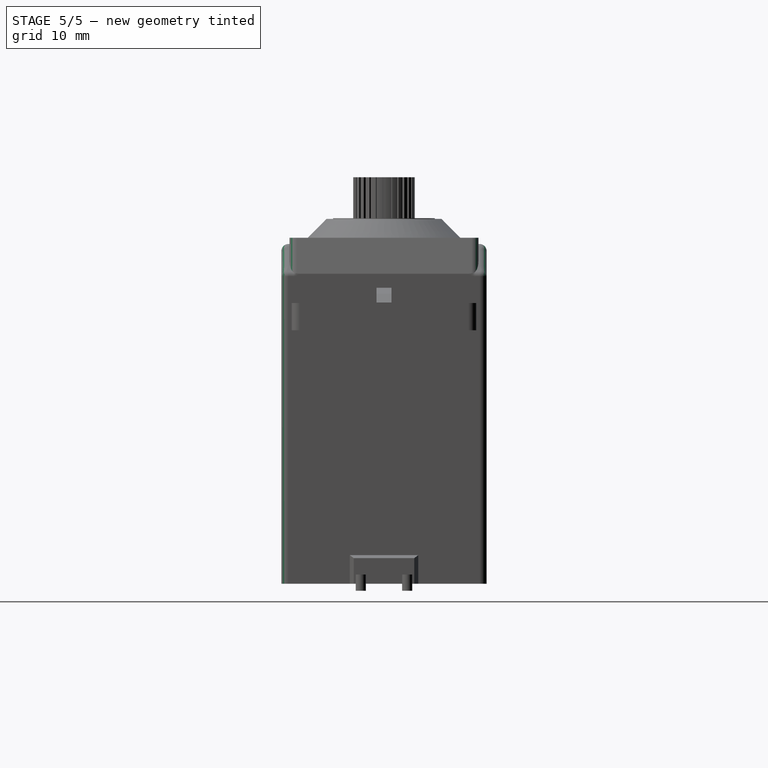
[diagram: stage 5 of 5 — right view after this stage's code; geometry added in this stage tinted green]
FEATURE [Part::MultiFuse] Fusion003
  Shapes = -> [Fusion001,Part__Mirroring,Fillet]
FEATURE [Part::Fillet] Fillet001
  Base = -> Fusion003
  Edges = 4 edges r=0.7: [Edge2,Edge3,Edge25,Edge40]
FEATURE [Part::Fillet] Fillet002
  Base = -> Fillet001
  Edges = 2 edges r=0.7: [Edge112,Edge121]
FEATURE [Part::Fillet] Fillet003
  Base = -> Fillet002
  Edges = 6 edges r=0.7: [Edge10,Edge65,Edge71,Edge80,Edge142,Edge145]
FEATURE [Part::Fillet] Fillet004
  Base = -> Fillet003
  Edges = 5 edges r=0.7: [Edge25,Edge29,Edge59,Edge63,Edge65]
FEATURE [Part::Fillet] Fillet005
  Base = -> Fillet004
  Edges = 2 edges r=0.7: [Edge33,Edge62]
FEATURE [Part::Cut] Cut
  Base = -> Fillet005
  Tool = -> Fusion004
FEATURE [App::DocumentObjectGroup] Group  label="Futaba-3003-body-src"
  Group = -> [Pad,Pocket,Pocket001,Pocket002,Pocket003,Fusion,Pocket005,Pocket006,Pocket007,Loft001,Pad002,Pad003,Pocket008,Pocket009,PolarPattern,Pad004,Fillet005,Cut]
FEATURE [Part::Feature] Cut001  label="Futaba-3003-body-final"
  shape: bbox 55.26 x 20 x 40.28 mm, 242 faces (baked)
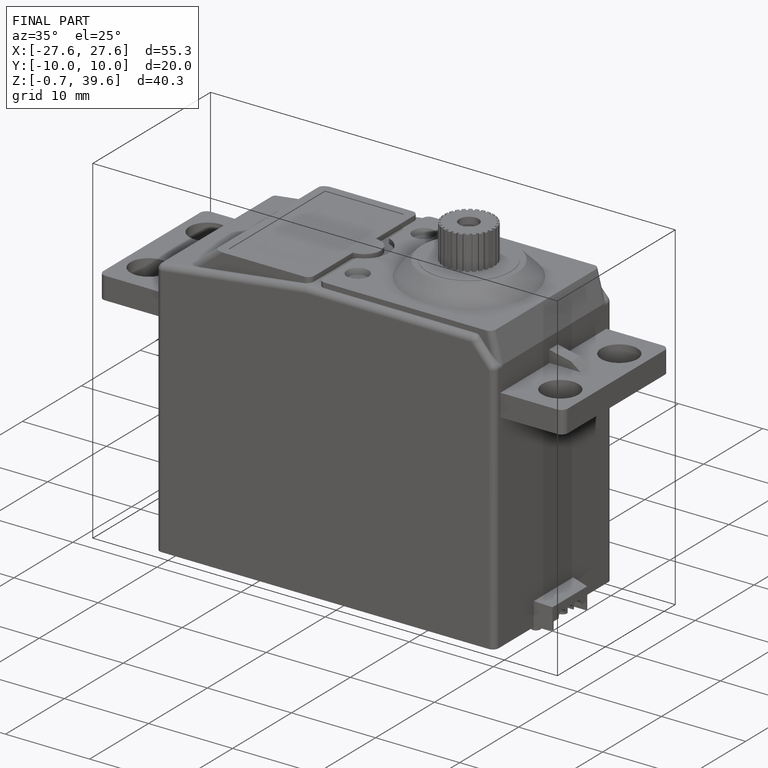
[diagram: finished part — iso view with bounding-box wireframe]
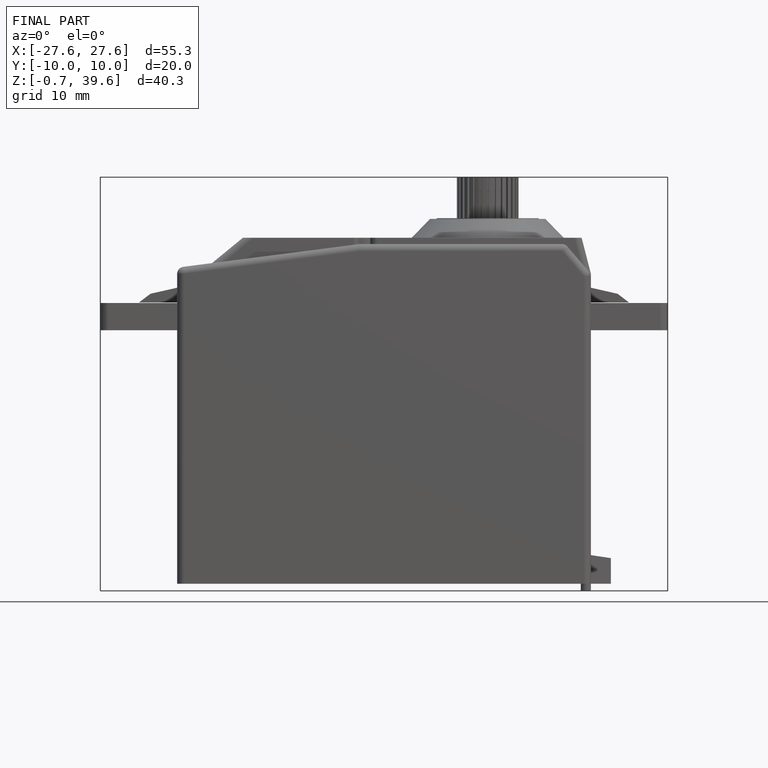
[diagram: finished part — front view with bounding-box wireframe]
